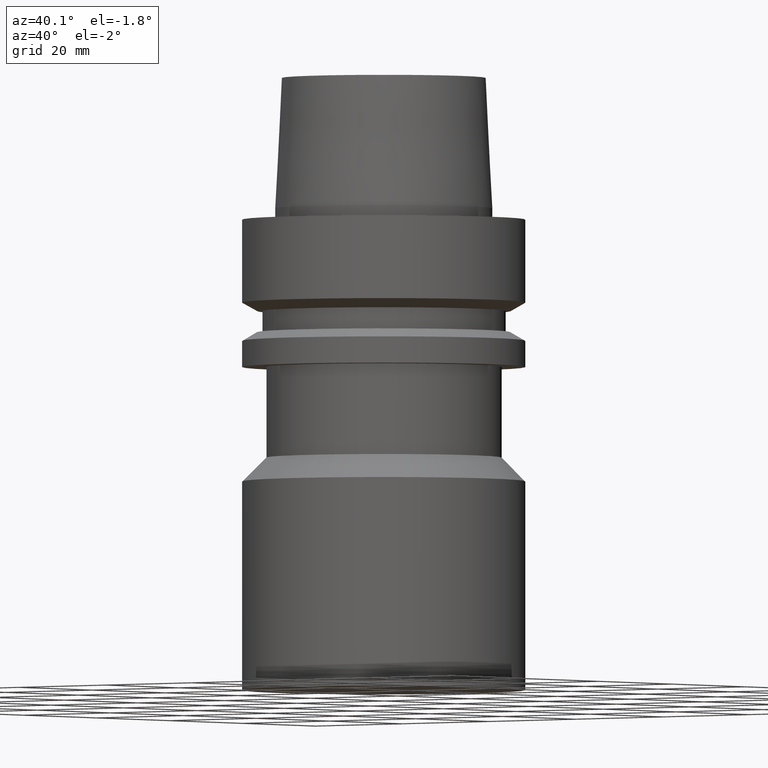
[diagram: clean part render]
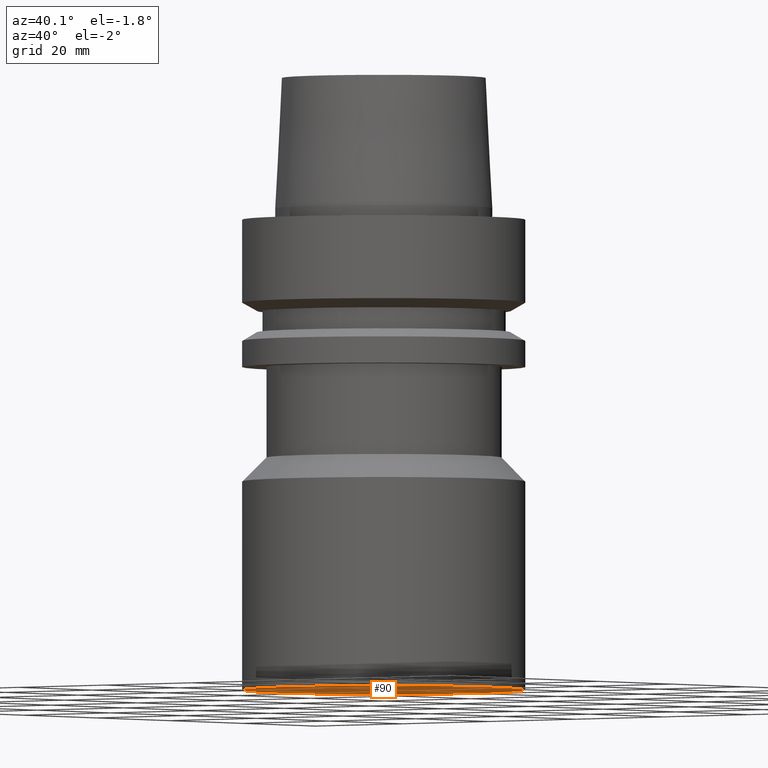
[diagram: same view with one face highlighted and labeled with its STEP entity id]
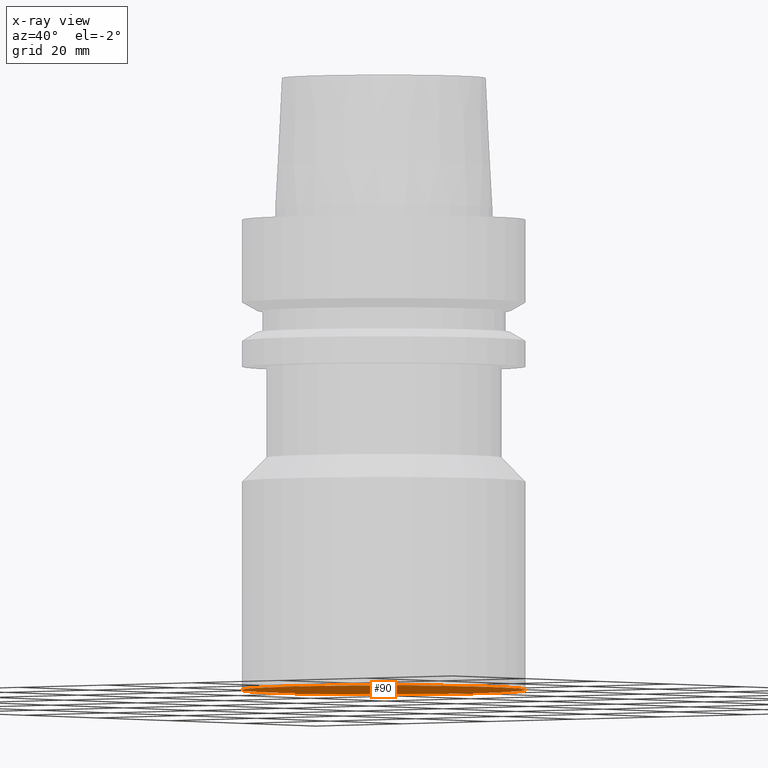
[diagram: x-ray of the same camera — body ghosted, the highlighted face saturated]
A machine part, auxiliary view. The second image highlights one B-rep face of the part: STEP entity #90.
The next image is the same camera in x-ray: the body ghosted, the highlighted face saturated — about 0% of this face is hidden behind the body in this view.
In plain terms, the highlighted planar face has unit normal (0, 0, -1).
Its self-contained STEP definition (entity closure, byte-faithful):
#90=ADVANCED_FACE('',(#136),#137,.T.);
#136=FACE_OUTER_BOUND('',#182,.T.);
#137=PLANE('',#183);
#182=EDGE_LOOP('',(#258));
#183=AXIS2_PLACEMENT_3D('',#259,#260,#261);
#258=ORIENTED_EDGE('',*,*,#276,.T.);
#259=CARTESIAN_POINT('',(5.08228421646152E-015,12.5,-83.0));
#260=DIRECTION('',(6.12323399573677E-017,1.22464679914735E-016,-1.0));
#261=DIRECTION('',(-1.23259516440783E-032,1.0,1.22464679914735E-016));
#276=EDGE_CURVE('',#305,#305,#306,.T.);
#305=VERTEX_POINT('',#335);
#306=CIRCLE('',#336,25.0);
#335=CARTESIAN_POINT('',(5.08228421646152E-015,25.0,-83.0));
#336=AXIS2_PLACEMENT_3D('',#379,#380,#381);
#379=CARTESIAN_POINT('',(5.08228421646152E-015,1.0164568432923E-014,-83.0));
#380=DIRECTION('',(6.12323399573677E-017,1.22464679914735E-016,-1.0));
#381=DIRECTION('',(-1.23259516440783E-032,1.0,1.22464679914735E-016));